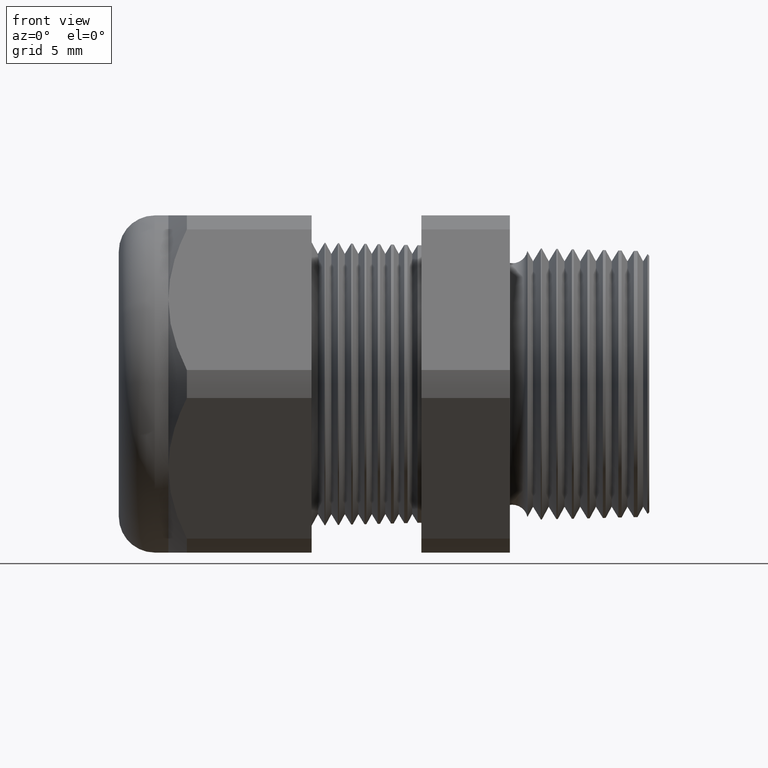
[diagram: clean part render]
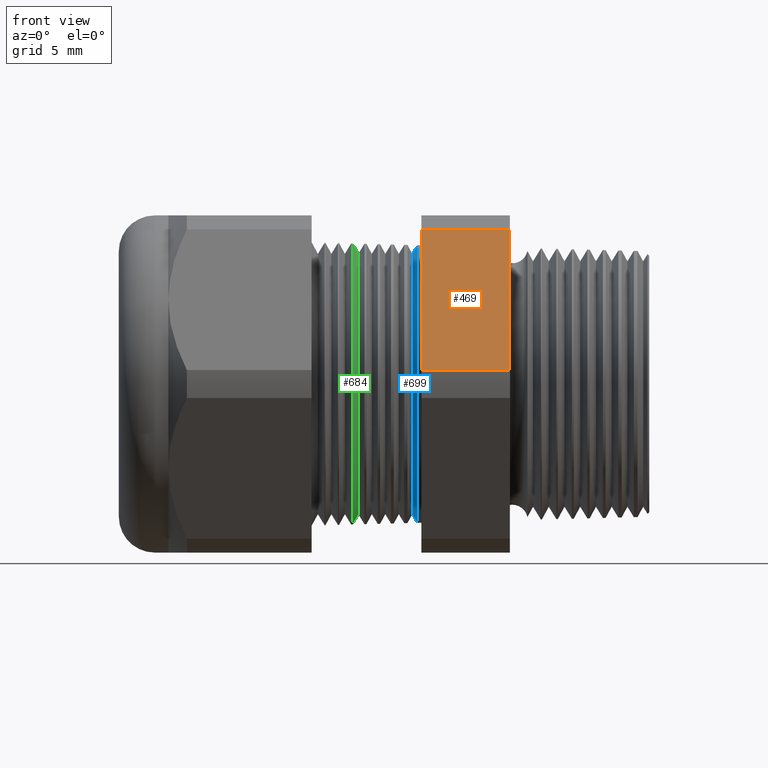
[diagram: same view with three faces highlighted in distinct colors, each labeled with its STEP entity id]
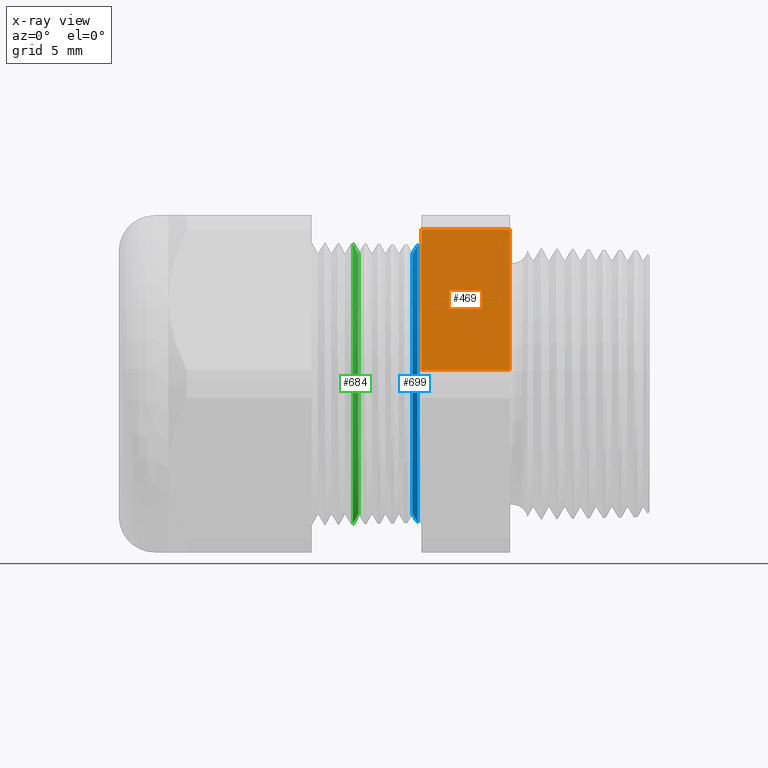
[diagram: x-ray of the same camera — body ghosted, the three highlighted faces saturated]
A machine part, front view with three faces highlighted in distinct colors.
The next image is the same camera in x-ray (body ghosted, the three faces saturated) — at least one of them is partly hidden behind the body in this view.
Their STEP definitions:

[orange] entity #469 — the highlighted planar face has unit normal (0, -0.866, 0.5).
#348 = VERTEX_POINT ( 'NONE', #2023 ) ;
#373 = VERTEX_POINT ( 'NONE', #2100 ) ;
#375 = EDGE_CURVE ( 'NONE', #373, #348, #2099, .T. ) ;
#469 = ADVANCED_FACE ( 'NONE', ( #2251 ), #2250, .T. ) ;
#470 = ORIENTED_EDGE ( 'NONE', *, *, #492, .F. ) ;
#471 = ORIENTED_EDGE ( 'NONE', *, *, #375, .F. ) ;
#472 = ORIENTED_EDGE ( 'NONE', *, *, #473, .T. ) ;
#473 = EDGE_CURVE ( 'NONE', #373, #474, #2307, .T. ) ;
#474 = VERTEX_POINT ( 'NONE', #2303 ) ;
#475 = ORIENTED_EDGE ( 'NONE', *, *, #476, .F. ) ;
#476 = EDGE_CURVE ( 'NONE', #493, #474, #2302, .T. ) ;
#492 = EDGE_CURVE ( 'NONE', #348, #493, #2281, .T. ) ;
#493 = VERTEX_POINT ( 'NONE', #2334 ) ;
#494 = EDGE_LOOP ( 'NONE', ( #470, #471, #472, #475 ) ) ;
#2023 = CARTESIAN_POINT ( 'NONE',  ( -0.3100000000000000000, -0.4150909474475088000, 0.03104138925901241800 ) ) ;
#2096 = DIRECTION ( 'NONE',  ( 0.0000000000000000000, -0.4999999999999998300, -0.8660254037844386000 ) ) ;
#2097 = VECTOR ( 'NONE', #2096, 39.37007874015748900 ) ;
#2098 = CARTESIAN_POINT ( 'NONE',  ( -0.3100000000000000000, -0.1372595264191648300, 0.5122595264191645000 ) ) ;
#2099 = LINE ( 'NONE', #2098, #2097 ) ;
#2100 = CARTESIAN_POINT ( 'NONE',  ( -0.3100000000000000000, -0.2344281053908205100, 0.3439586107409878200 ) ) ;
#2246 = DIRECTION ( 'NONE',  ( 0.0000000000000000000, -0.4999999999999998300, -0.8660254037844386000 ) ) ;
#2247 = DIRECTION ( 'NONE',  ( 0.0000000000000000000, -0.8660254037844387100, 0.4999999999999998900 ) ) ;
#2248 = CARTESIAN_POINT ( 'NONE',  ( 0.0000000000000000000, -0.4150909474475088000, 0.03104138925901233800 ) ) ;
#2249 = AXIS2_PLACEMENT_3D ( 'NONE', #2248, #2247, #2246 ) ;
#2250 = PLANE ( 'NONE',  #2249 ) ;
#2251 = FACE_OUTER_BOUND ( 'NONE', #494, .T. ) ;
#2281 = LINE ( 'NONE', #2337, #2336 ) ;
#2299 = DIRECTION ( 'NONE',  ( 0.0000000000000000000, 0.4999999999999998300, 0.8660254037844386000 ) ) ;
#2300 = VECTOR ( 'NONE', #2299, 39.37007874015748900 ) ;
#2301 = CARTESIAN_POINT ( 'NONE',  ( -0.5068503937007874400, -0.1372595264191648300, 0.5122595264191645000 ) ) ;
#2302 = LINE ( 'NONE', #2301, #2300 ) ;
#2303 = CARTESIAN_POINT ( 'NONE',  ( -0.5068503937007874400, -0.2344281053908205100, 0.3439586107409878200 ) ) ;
#2304 = DIRECTION ( 'NONE',  ( -1.000000000000000000, 0.0000000000000000000, 0.0000000000000000000 ) ) ;
#2305 = VECTOR ( 'NONE', #2304, 39.37007874015748100 ) ;
#2306 = CARTESIAN_POINT ( 'NONE',  ( 0.0000000000000000000, -0.2344281053908205100, 0.3439586107409878200 ) ) ;
#2307 = LINE ( 'NONE', #2306, #2305 ) ;
#2334 = CARTESIAN_POINT ( 'NONE',  ( -0.5068503937007874400, -0.4150909474475088000, 0.03104138925901241800 ) ) ;
#2335 = DIRECTION ( 'NONE',  ( -1.000000000000000000, 0.0000000000000000000, 0.0000000000000000000 ) ) ;
#2336 = VECTOR ( 'NONE', #2335, 39.37007874015748100 ) ;
#2337 = CARTESIAN_POINT ( 'NONE',  ( 0.0000000000000000000, -0.4150909474475088000, 0.03104138925901241800 ) ) ;

[blue] entity #699 — the highlighted conical surface has half-angle 58.5 deg.
#559 = EDGE_CURVE ( 'NONE', #1154, #1183, #2386, .T. ) ;
#699 = ADVANCED_FACE ( 'NONE', ( #2539 ), #2600, .T. ) ;
#700 = EDGE_LOOP ( 'NONE', ( #701, #702, #703, #704 ) ) ;
#701 = ORIENTED_EDGE ( 'NONE', *, *, #1182, .F. ) ;
#702 = ORIENTED_EDGE ( 'NONE', *, *, #1399, .T. ) ;
#703 = ORIENTED_EDGE ( 'NONE', *, *, #1200, .T. ) ;
#704 = ORIENTED_EDGE ( 'NONE', *, *, #559, .T. ) ;
#1154 = VERTEX_POINT ( 'NONE', #3307 ) ;
#1161 = VERTEX_POINT ( 'NONE', #3357 ) ;
#1180 = VERTEX_POINT ( 'NONE', #3383 ) ;
#1182 = EDGE_CURVE ( 'NONE', #1180, #1183, #3382, .T. ) ;
#1183 = VERTEX_POINT ( 'NONE', #3378 ) ;
#1200 = EDGE_CURVE ( 'NONE', #1161, #1154, #3413, .T. ) ;
#1399 = EDGE_CURVE ( 'NONE', #1180, #1161, #3740, .T. ) ;
#2382 = DIRECTION ( 'NONE',  ( 0.0000000000000000000, 0.0000000000000000000, -1.000000000000000000 ) ) ;
#2383 = DIRECTION ( 'NONE',  ( -1.000000000000000000, 0.0000000000000000000, 0.0000000000000000000 ) ) ;
#2384 = CARTESIAN_POINT ( 'NONE',  ( -0.5153251180340938700, 0.0000000000000000000, 0.0000000000000000000 ) ) ;
#2385 = AXIS2_PLACEMENT_3D ( 'NONE', #2384, #2383, #2382 ) ;
#2386 = CIRCLE ( 'NONE', #2385, 0.3088321412271148300 ) ;
#2534 = CARTESIAN_POINT ( 'NONE',  ( -0.5270917547981793800, 0.0000000000000000000, 0.0000000000000000000 ) ) ;
#2539 = FACE_OUTER_BOUND ( 'NONE', #700, .T. ) ;
#2596 = DIRECTION ( 'NONE',  ( 0.0000000000000000000, 0.0000000000000000000, -1.000000000000000000 ) ) ;
#2597 = DIRECTION ( 'NONE',  ( 1.000000000000000000, 0.0000000000000000000, 0.0000000000000000000 ) ) ;
#2598 = AXIS2_PLACEMENT_3D ( 'NONE', #2534, #2597, #2596 ) ;
#2600 = CONICAL_SURFACE ( 'NONE', #2598, 0.2896307351718083200, 1.021017612416705000 ) ;
#3307 = CARTESIAN_POINT ( 'NONE',  ( -0.5153251180340938700, 3.782102932276095000E-017, -0.3088321412271148900 ) ) ;
#3357 = CARTESIAN_POINT ( 'NONE',  ( -0.5270917547981793800, 3.668137896765698900E-017, -0.2896307351718083200 ) ) ;
#3378 = CARTESIAN_POINT ( 'NONE',  ( -0.5153251180340938700, 0.0000000000000000000, 0.3088321412271148900 ) ) ;
#3379 = DIRECTION ( 'NONE',  ( 0.5224985647159299300, 1.044183048100726400E-016, 0.8526401643541037200 ) ) ;
#3380 = VECTOR ( 'NONE', #3379, 39.37007874015748100 ) ;
#3381 = CARTESIAN_POINT ( 'NONE',  ( -0.5270917547981793800, 3.546953527628497700E-017, 0.2896307351718083200 ) ) ;
#3382 = LINE ( 'NONE', #3381, #3380 ) ;
#3383 = CARTESIAN_POINT ( 'NONE',  ( -0.5270917547981793800, 0.0000000000000000000, 0.2896307351718083200 ) ) ;
#3410 = DIRECTION ( 'NONE',  ( 0.5224985647159299300, 0.0000000000000000000, -0.8526401643541037200 ) ) ;
#3411 = VECTOR ( 'NONE', #3410, 39.37007874015748100 ) ;
#3412 = CARTESIAN_POINT ( 'NONE',  ( -0.5270917547981793800, 0.0000000000000000000, -0.2896307351718083200 ) ) ;
#3413 = LINE ( 'NONE', #3412, #3411 ) ;
#3740 = CIRCLE ( 'NONE', #3804, 0.2896307351718083200 ) ;
#3801 = DIRECTION ( 'NONE',  ( 0.0000000000000000000, 0.0000000000000000000, -1.000000000000000000 ) ) ;
#3802 = DIRECTION ( 'NONE',  ( 1.000000000000000000, 0.0000000000000000000, 0.0000000000000000000 ) ) ;
#3803 = CARTESIAN_POINT ( 'NONE',  ( -0.5270917547981793800, 0.0000000000000000000, 0.0000000000000000000 ) ) ;
#3804 = AXIS2_PLACEMENT_3D ( 'NONE', #3803, #3802, #3801 ) ;

[green] entity #684 — the highlighted conical surface has half-angle 61.5 deg.
#47 = EDGE_CURVE ( 'NONE', #1220, #1217, #1483, .T. ) ;
#684 = ADVANCED_FACE ( 'NONE', ( #2558 ), #2557, .T. ) ;
#685 = EDGE_LOOP ( 'NONE', ( #686, #687, #689, #690 ) ) ;
#686 = ORIENTED_EDGE ( 'NONE', *, *, #1216, .F. ) ;
#687 = ORIENTED_EDGE ( 'NONE', *, *, #688, .F. ) ;
#688 = EDGE_CURVE ( 'NONE', #1270, #1269, #2556, .T. ) ;
#689 = ORIENTED_EDGE ( 'NONE', *, *, #1222, .T. ) ;
#690 = ORIENTED_EDGE ( 'NONE', *, *, #47, .T. ) ;
#1216 = EDGE_CURVE ( 'NONE', #1269, #1217, #3443, .T. ) ;
#1217 = VERTEX_POINT ( 'NONE', #3439 ) ;
#1220 = VERTEX_POINT ( 'NONE', #3433 ) ;
#1222 = EDGE_CURVE ( 'NONE', #1270, #1220, #3432, .T. ) ;
#1269 = VERTEX_POINT ( 'NONE', #3577 ) ;
#1270 = VERTEX_POINT ( 'NONE', #3576 ) ;
#1479 = DIRECTION ( 'NONE',  ( 0.0000000000000000000, 0.0000000000000000000, 1.000000000000000000 ) ) ;
#1480 = DIRECTION ( 'NONE',  ( 1.000000000000000000, 0.0000000000000000000, 0.0000000000000000000 ) ) ;
#1481 = CARTESIAN_POINT ( 'NONE',  ( -0.6595680846391957000, 0.0000000000000000000, 0.0000000000000000000 ) ) ;
#1482 = AXIS2_PLACEMENT_3D ( 'NONE', #1481, #1480, #1479 ) ;
#1483 = CIRCLE ( 'NONE', #1482, 0.3126092762375419200 ) ;
#2548 = DIRECTION ( 'NONE',  ( 0.0000000000000000000, 0.0000000000000000000, -1.000000000000000000 ) ) ;
#2549 = DIRECTION ( 'NONE',  ( 1.000000000000000000, 0.0000000000000000000, 0.0000000000000000000 ) ) ;
#2550 = CARTESIAN_POINT ( 'NONE',  ( -0.6470917547981793700, 0.0000000000000000000, 0.0000000000000000000 ) ) ;
#2551 = AXIS2_PLACEMENT_3D ( 'NONE', #2550, #2549, #2548 ) ;
#2552 = DIRECTION ( 'NONE',  ( 0.0000000000000000000, 0.0000000000000000000, 1.000000000000000000 ) ) ;
#2553 = DIRECTION ( 'NONE',  ( -1.000000000000000000, 0.0000000000000000000, 0.0000000000000000000 ) ) ;
#2554 = CARTESIAN_POINT ( 'NONE',  ( -0.6608661417322834200, 0.0000000000000000000, 0.0000000000000000000 ) ) ;
#2555 = AXIS2_PLACEMENT_3D ( 'NONE', #2554, #2553, #2552 ) ;
#2556 = CIRCLE ( 'NONE', #2551, 0.2896307351718083200 ) ;
#2557 = CONICAL_SURFACE ( 'NONE', #2555, 0.3150000000000000000, 1.073377489976500100 ) ;
#2558 = FACE_OUTER_BOUND ( 'NONE', #685, .T. ) ;
#3429 = DIRECTION ( 'NONE',  ( -0.4771587602596195100, 0.0000000000000000000, 0.8788171126619593900 ) ) ;
#3430 = VECTOR ( 'NONE', #3429, 39.37007874015748100 ) ;
#3431 = CARTESIAN_POINT ( 'NONE',  ( -0.6608661417322834200, 0.0000000000000000000, 0.3150000000000000000 ) ) ;
#3432 = LINE ( 'NONE', #3431, #3430 ) ;
#3433 = CARTESIAN_POINT ( 'NONE',  ( -0.6595680846391957000, 0.0000000000000000000, 0.3126092762375419200 ) ) ;
#3439 = CARTESIAN_POINT ( 'NONE',  ( -0.6595680846391957000, 3.828902741387178900E-017, -0.3126092762375419200 ) ) ;
#3440 = DIRECTION ( 'NONE',  ( -0.4771587602596195100, 1.076240564057387400E-016, -0.8788171126619593900 ) ) ;
#3441 = VECTOR ( 'NONE', #3440, 39.37007874015748100 ) ;
#3442 = CARTESIAN_POINT ( 'NONE',  ( -0.6608661417322834200, 3.857637417314162700E-017, -0.3150000000000000000 ) ) ;
#3443 = LINE ( 'NONE', #3442, #3441 ) ;
#3576 = CARTESIAN_POINT ( 'NONE',  ( -0.6470917547981793700, 0.0000000000000000000, 0.2896307351718083200 ) ) ;
#3577 = CARTESIAN_POINT ( 'NONE',  ( -0.6470917547981793700, 3.687656511454631100E-017, -0.2896307351718083200 ) ) ;